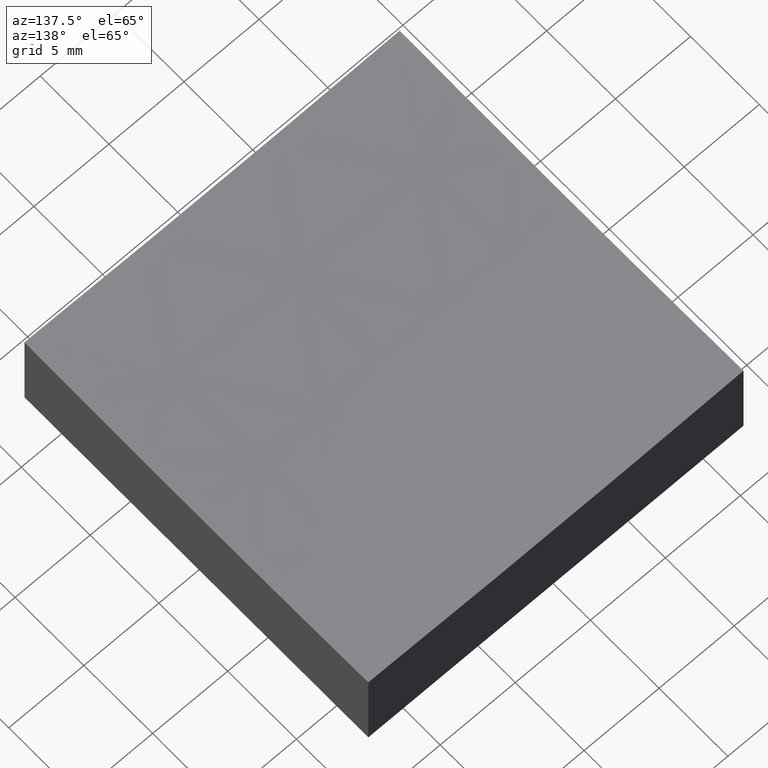
[diagram: clean part render]
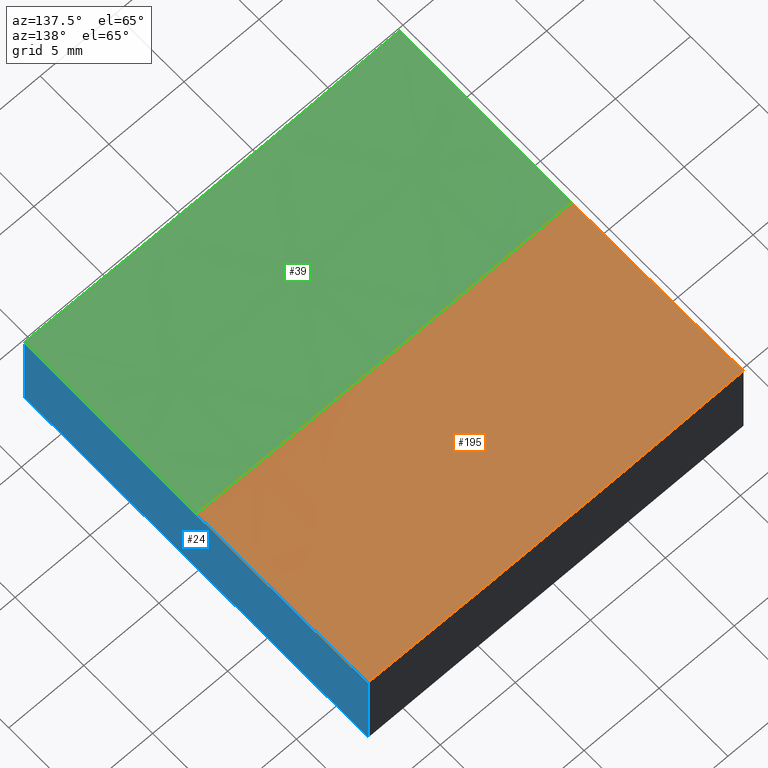
[diagram: same view with three faces highlighted in distinct colors, each labeled with its STEP entity id]
A machine part, auxiliary view with three faces highlighted in distinct colors.
Their STEP definitions:

[orange] entity #195 — the highlighted spherical surface has radius 400 mm.
#4 = CARTESIAN_POINT ( 'NONE',  ( 12.50000000000000178, 1.734723475976800586E-15, 406.0000000000000000 ) ) ;
#6 = EDGE_CURVE ( 'NONE', #46, #210, #146, .T. ) ;
#17 = EDGE_CURVE ( 'NONE', #175, #73, #194, .T. ) ;
#25 = CARTESIAN_POINT ( 'NONE',  ( -12.49999999999999645, 1.530808498934189155E-15, 6.195360207013139942 ) ) ;
#28 = CARTESIAN_POINT ( 'NONE',  ( 4.972066004538253326E-14, 0.0000000000000000000, 406.0000000000000000 ) ) ;
#40 = CARTESIAN_POINT ( 'NONE',  ( 12.50000000000000000, -9.629649721936179265E-32, 6.195360207013139942 ) ) ;
#46 = VERTEX_POINT ( 'NONE', #40 ) ;
#52 = ORIENTED_EDGE ( 'NONE', *, *, #158, .T. ) ;
#54 = AXIS2_PLACEMENT_3D ( 'NONE', #66, #63, #147 ) ;
#58 = EDGE_CURVE ( 'NONE', #210, #73, #181, .T. ) ;
#63 = DIRECTION ( 'NONE',  ( 1.000000000000000000, 1.387778780781445676E-16, -0.0000000000000000000 ) ) ;
#65 = AXIS2_PLACEMENT_3D ( 'NONE', #4, #87, #187 ) ;
#66 = CARTESIAN_POINT ( 'NONE',  ( -12.49999999999999822, -1.734723475976813997E-15, 406.0000000000000000 ) ) ;
#67 = CIRCLE ( 'NONE', #171, 400.0000000000000000 ) ;
#68 = DIRECTION ( 'NONE',  ( 1.000000000000000000, 0.0000000000000000000, -1.387778780781445676E-16 ) ) ;
#73 = VERTEX_POINT ( 'NONE', #203 ) ;
#87 = DIRECTION ( 'NONE',  ( 1.000000000000000000, 1.387778780781445676E-16, -0.0000000000000000000 ) ) ;
#89 = CIRCLE ( 'NONE', #217, 400.0000000000000000 ) ;
#91 = ORIENTED_EDGE ( 'NONE', *, *, #58, .T. ) ;
#94 = EDGE_LOOP ( 'NONE', ( #153, #52, #245, #91, #209 ) ) ;
#101 = AXIS2_PLACEMENT_3D ( 'NONE', #143, #107, #123 ) ;
#107 = DIRECTION ( 'NONE',  ( 0.0000000000000000000, 1.000000000000000000, 0.0000000000000000000 ) ) ;
#123 = DIRECTION ( 'NONE',  ( 0.0000000000000000000, 0.0000000000000000000, 1.000000000000000000 ) ) ;
#133 = DIRECTION ( 'NONE',  ( 0.0000000000000000000, 0.0000000000000000000, -1.000000000000000000 ) ) ;
#143 = CARTESIAN_POINT ( 'NONE',  ( 4.972066004538253326E-14, 12.50000000000000000, 406.0000000000000000 ) ) ;
#146 = CIRCLE ( 'NONE', #65, 399.8046397929869045 ) ;
#147 = DIRECTION ( 'NONE',  ( -1.388456903851858804E-16, 1.000000000000000000, 0.0000000000000000000 ) ) ;
#153 = ORIENTED_EDGE ( 'NONE', *, *, #166, .F. ) ;
#158 = EDGE_CURVE ( 'NONE', #226, #46, #67, .T. ) ;
#166 = EDGE_CURVE ( 'NONE', #226, #175, #89, .T. ) ;
#171 = AXIS2_PLACEMENT_3D ( 'NONE', #28, #224, #133 ) ;
#174 = SPHERICAL_SURFACE ( 'NONE', #199, 400.0000000000000000 ) ;
#175 = VERTEX_POINT ( 'NONE', #25 ) ;
#179 = CARTESIAN_POINT ( 'NONE',  ( 12.50000000000000000, 12.50000000000000000, 6.390815921355486040 ) ) ;
#181 = CIRCLE ( 'NONE', #101, 399.8046397929869613 ) ;
#187 = DIRECTION ( 'NONE',  ( -1.388456903851858804E-16, 1.000000000000000000, 0.0000000000000000000 ) ) ;
#189 = FACE_OUTER_BOUND ( 'NONE', #94, .T. ) ;
#191 = DIRECTION ( 'NONE',  ( 1.224646799147353207E-16, 1.000000000000000000, -2.010501073696115557E-32 ) ) ;
#194 = CIRCLE ( 'NONE', #54, 399.8046397929869045 ) ;
#195 = ADVANCED_FACE ( 'NONE', ( #189 ), #174, .F. ) ;
#199 = AXIS2_PLACEMENT_3D ( 'NONE', #244, #240, #68 ) ;
#203 = CARTESIAN_POINT ( 'NONE',  ( -12.50000000000000000, 12.50000000000000000, 6.390815921355486040 ) ) ;
#208 = CARTESIAN_POINT ( 'NONE',  ( 4.972066004538253326E-14, 0.0000000000000000000, 406.0000000000000000 ) ) ;
#209 = ORIENTED_EDGE ( 'NONE', *, *, #17, .F. ) ;
#210 = VERTEX_POINT ( 'NONE', #179 ) ;
#217 = AXIS2_PLACEMENT_3D ( 'NONE', #208, #191, #223 ) ;
#223 = DIRECTION ( 'NONE',  ( -1.000000000000000000, 1.224646799147353207E-16, 0.0000000000000000000 ) ) ;
#224 = DIRECTION ( 'NONE',  ( 0.0000000000000000000, -1.000000000000000000, -0.0000000000000000000 ) ) ;
#226 = VERTEX_POINT ( 'NONE', #252 ) ;
#240 = DIRECTION ( 'NONE',  ( 0.0000000000000000000, 1.000000000000000000, 0.0000000000000000000 ) ) ;
#244 = CARTESIAN_POINT ( 'NONE',  ( 4.972066004538253326E-14, 0.0000000000000000000, 406.0000000000000000 ) ) ;
#245 = ORIENTED_EDGE ( 'NONE', *, *, #6, .T. ) ;
#252 = CARTESIAN_POINT ( 'NONE',  ( 8.545647519554498677E-15, 0.0000000000000000000, 6.000000000000005329 ) ) ;

[blue] entity #24 — the highlighted planar face has unit normal (1, 0, -0).
#4 = CARTESIAN_POINT ( 'NONE',  ( 12.50000000000000178, 1.734723475976800586E-15, 406.0000000000000000 ) ) ;
#6 = EDGE_CURVE ( 'NONE', #46, #210, #146, .T. ) ;
#19 = LINE ( 'NONE', #126, #117 ) ;
#24 = ADVANCED_FACE ( 'NONE', ( #108 ), #238, .T. ) ;
#27 = EDGE_CURVE ( 'NONE', #134, #92, #188, .T. ) ;
#37 = VECTOR ( 'NONE', #178, 1000.000000000000000 ) ;
#38 = EDGE_CURVE ( 'NONE', #210, #72, #19, .T. ) ;
#40 = CARTESIAN_POINT ( 'NONE',  ( 12.50000000000000000, -9.629649721936179265E-32, 6.195360207013139942 ) ) ;
#43 = CARTESIAN_POINT ( 'NONE',  ( 12.50000000000000000, 12.50000000000000000, 20.00000000000000000 ) ) ;
#44 = AXIS2_PLACEMENT_3D ( 'NONE', #180, #160, #76 ) ;
#46 = VERTEX_POINT ( 'NONE', #40 ) ;
#57 = CARTESIAN_POINT ( 'NONE',  ( 12.50000000000000000, 12.50000000000000000, 0.0000000000000000000 ) ) ;
#64 = CARTESIAN_POINT ( 'NONE',  ( 12.50000000000000355, -12.50000000000000000, 20.00000000000000000 ) ) ;
#65 = AXIS2_PLACEMENT_3D ( 'NONE', #4, #87, #187 ) ;
#70 = ORIENTED_EDGE ( 'NONE', *, *, #6, .F. ) ;
#72 = VERTEX_POINT ( 'NONE', #106 ) ;
#76 = DIRECTION ( 'NONE',  ( -1.388456903851858804E-16, 1.000000000000000000, 0.0000000000000000000 ) ) ;
#87 = DIRECTION ( 'NONE',  ( 1.000000000000000000, 1.387778780781445676E-16, -0.0000000000000000000 ) ) ;
#88 = VECTOR ( 'NONE', #109, 1000.000000000000000 ) ;
#92 = VERTEX_POINT ( 'NONE', #104 ) ;
#104 = CARTESIAN_POINT ( 'NONE',  ( 12.50000000000000355, -12.50000000000000000, 0.0000000000000000000 ) ) ;
#106 = CARTESIAN_POINT ( 'NONE',  ( 12.50000000000000000, 12.50000000000000000, 0.0000000000000000000 ) ) ;
#108 = FACE_OUTER_BOUND ( 'NONE', #225, .T. ) ;
#109 = DIRECTION ( 'NONE',  ( -0.0000000000000000000, -0.0000000000000000000, -1.000000000000000000 ) ) ;
#110 = EDGE_CURVE ( 'NONE', #134, #46, #213, .T. ) ;
#117 = VECTOR ( 'NONE', #165, 1000.000000000000000 ) ;
#120 = LINE ( 'NONE', #57, #37 ) ;
#126 = CARTESIAN_POINT ( 'NONE',  ( 12.50000000000000000, 12.50000000000000000, 20.00000000000000000 ) ) ;
#128 = DIRECTION ( 'NONE',  ( 1.000000000000000000, 1.387778780781445676E-16, -0.0000000000000000000 ) ) ;
#134 = VERTEX_POINT ( 'NONE', #172 ) ;
#146 = CIRCLE ( 'NONE', #65, 399.8046397929869045 ) ;
#152 = ORIENTED_EDGE ( 'NONE', *, *, #27, .T. ) ;
#154 = ORIENTED_EDGE ( 'NONE', *, *, #110, .F. ) ;
#160 = DIRECTION ( 'NONE',  ( 1.000000000000000000, 1.387778780781445676E-16, -0.0000000000000000000 ) ) ;
#165 = DIRECTION ( 'NONE',  ( -0.0000000000000000000, -0.0000000000000000000, -1.000000000000000000 ) ) ;
#172 = CARTESIAN_POINT ( 'NONE',  ( 12.50000000000000355, -12.50000000000000000, 6.390815921355486040 ) ) ;
#173 = ORIENTED_EDGE ( 'NONE', *, *, #38, .F. ) ;
#178 = DIRECTION ( 'NONE',  ( 1.387778780781445676E-16, -1.000000000000000000, 0.0000000000000000000 ) ) ;
#179 = CARTESIAN_POINT ( 'NONE',  ( 12.50000000000000000, 12.50000000000000000, 6.390815921355486040 ) ) ;
#180 = CARTESIAN_POINT ( 'NONE',  ( 12.50000000000000178, 1.734723475976800586E-15, 406.0000000000000000 ) ) ;
#187 = DIRECTION ( 'NONE',  ( -1.388456903851858804E-16, 1.000000000000000000, 0.0000000000000000000 ) ) ;
#188 = LINE ( 'NONE', #64, #88 ) ;
#192 = ORIENTED_EDGE ( 'NONE', *, *, #233, .F. ) ;
#205 = DIRECTION ( 'NONE',  ( -1.387778780781445676E-16, 1.000000000000000000, 0.0000000000000000000 ) ) ;
#210 = VERTEX_POINT ( 'NONE', #179 ) ;
#213 = CIRCLE ( 'NONE', #44, 399.8046397929869045 ) ;
#221 = AXIS2_PLACEMENT_3D ( 'NONE', #43, #128, #205 ) ;
#225 = EDGE_LOOP ( 'NONE', ( #154, #152, #192, #173, #70 ) ) ;
#233 = EDGE_CURVE ( 'NONE', #72, #92, #120, .T. ) ;
#238 = PLANE ( 'NONE',  #221 ) ;

[green] entity #39 — the highlighted spherical surface has radius 400 mm.
#1 = DIRECTION ( 'NONE',  ( -1.388456903851858804E-16, 1.000000000000000000, 0.0000000000000000000 ) ) ;
#25 = CARTESIAN_POINT ( 'NONE',  ( -12.49999999999999645, 1.530808498934189155E-15, 6.195360207013139942 ) ) ;
#28 = CARTESIAN_POINT ( 'NONE',  ( 4.972066004538253326E-14, 0.0000000000000000000, 406.0000000000000000 ) ) ;
#33 = CIRCLE ( 'NONE', #184, 399.8046397929869613 ) ;
#39 = ADVANCED_FACE ( 'NONE', ( #219 ), #236, .F. ) ;
#40 = CARTESIAN_POINT ( 'NONE',  ( 12.50000000000000000, -9.629649721936179265E-32, 6.195360207013139942 ) ) ;
#44 = AXIS2_PLACEMENT_3D ( 'NONE', #180, #160, #76 ) ;
#46 = VERTEX_POINT ( 'NONE', #40 ) ;
#47 = DIRECTION ( 'NONE',  ( 0.0000000000000000000, 0.0000000000000000000, 1.000000000000000000 ) ) ;
#48 = ORIENTED_EDGE ( 'NONE', *, *, #158, .F. ) ;
#61 = CARTESIAN_POINT ( 'NONE',  ( 4.972066004538253326E-14, 0.0000000000000000000, 406.0000000000000000 ) ) ;
#67 = CIRCLE ( 'NONE', #171, 400.0000000000000000 ) ;
#76 = DIRECTION ( 'NONE',  ( -1.388456903851858804E-16, 1.000000000000000000, 0.0000000000000000000 ) ) ;
#78 = EDGE_CURVE ( 'NONE', #211, #175, #168, .T. ) ;
#83 = DIRECTION ( 'NONE',  ( 1.000000000000000000, 0.0000000000000000000, -1.387778780781445676E-16 ) ) ;
#89 = CIRCLE ( 'NONE', #217, 400.0000000000000000 ) ;
#110 = EDGE_CURVE ( 'NONE', #134, #46, #213, .T. ) ;
#132 = EDGE_CURVE ( 'NONE', #134, #211, #33, .T. ) ;
#133 = DIRECTION ( 'NONE',  ( 0.0000000000000000000, 0.0000000000000000000, -1.000000000000000000 ) ) ;
#134 = VERTEX_POINT ( 'NONE', #172 ) ;
#138 = CARTESIAN_POINT ( 'NONE',  ( -12.49999999999999645, -12.50000000000000000, 6.390815921355486040 ) ) ;
#150 = DIRECTION ( 'NONE',  ( 0.0000000000000000000, 1.000000000000000000, 0.0000000000000000000 ) ) ;
#156 = ORIENTED_EDGE ( 'NONE', *, *, #132, .F. ) ;
#158 = EDGE_CURVE ( 'NONE', #226, #46, #67, .T. ) ;
#160 = DIRECTION ( 'NONE',  ( 1.000000000000000000, 1.387778780781445676E-16, -0.0000000000000000000 ) ) ;
#164 = CARTESIAN_POINT ( 'NONE',  ( -12.49999999999999822, -1.734723475976813997E-15, 406.0000000000000000 ) ) ;
#166 = EDGE_CURVE ( 'NONE', #226, #175, #89, .T. ) ;
#168 = CIRCLE ( 'NONE', #241, 399.8046397929869045 ) ;
#171 = AXIS2_PLACEMENT_3D ( 'NONE', #28, #224, #133 ) ;
#172 = CARTESIAN_POINT ( 'NONE',  ( 12.50000000000000355, -12.50000000000000000, 6.390815921355486040 ) ) ;
#175 = VERTEX_POINT ( 'NONE', #25 ) ;
#176 = ORIENTED_EDGE ( 'NONE', *, *, #110, .T. ) ;
#180 = CARTESIAN_POINT ( 'NONE',  ( 12.50000000000000178, 1.734723475976800586E-15, 406.0000000000000000 ) ) ;
#184 = AXIS2_PLACEMENT_3D ( 'NONE', #242, #150, #47 ) ;
#191 = DIRECTION ( 'NONE',  ( 1.224646799147353207E-16, 1.000000000000000000, -2.010501073696115557E-32 ) ) ;
#208 = CARTESIAN_POINT ( 'NONE',  ( 4.972066004538253326E-14, 0.0000000000000000000, 406.0000000000000000 ) ) ;
#211 = VERTEX_POINT ( 'NONE', #138 ) ;
#213 = CIRCLE ( 'NONE', #44, 399.8046397929869045 ) ;
#217 = AXIS2_PLACEMENT_3D ( 'NONE', #208, #191, #223 ) ;
#218 = DIRECTION ( 'NONE',  ( 1.000000000000000000, 1.387778780781445676E-16, -0.0000000000000000000 ) ) ;
#219 = FACE_OUTER_BOUND ( 'NONE', #247, .T. ) ;
#223 = DIRECTION ( 'NONE',  ( -1.000000000000000000, 1.224646799147353207E-16, 0.0000000000000000000 ) ) ;
#224 = DIRECTION ( 'NONE',  ( 0.0000000000000000000, -1.000000000000000000, -0.0000000000000000000 ) ) ;
#226 = VERTEX_POINT ( 'NONE', #252 ) ;
#229 = ORIENTED_EDGE ( 'NONE', *, *, #166, .T. ) ;
#236 = SPHERICAL_SURFACE ( 'NONE', #251, 400.0000000000000000 ) ;
#237 = DIRECTION ( 'NONE',  ( 0.0000000000000000000, 1.000000000000000000, 0.0000000000000000000 ) ) ;
#241 = AXIS2_PLACEMENT_3D ( 'NONE', #164, #218, #1 ) ;
#242 = CARTESIAN_POINT ( 'NONE',  ( 4.972066004538253326E-14, -12.50000000000000000, 406.0000000000000000 ) ) ;
#243 = ORIENTED_EDGE ( 'NONE', *, *, #78, .F. ) ;
#247 = EDGE_LOOP ( 'NONE', ( #48, #229, #243, #156, #176 ) ) ;
#251 = AXIS2_PLACEMENT_3D ( 'NONE', #61, #237, #83 ) ;
#252 = CARTESIAN_POINT ( 'NONE',  ( 8.545647519554498677E-15, 0.0000000000000000000, 6.000000000000005329 ) ) ;